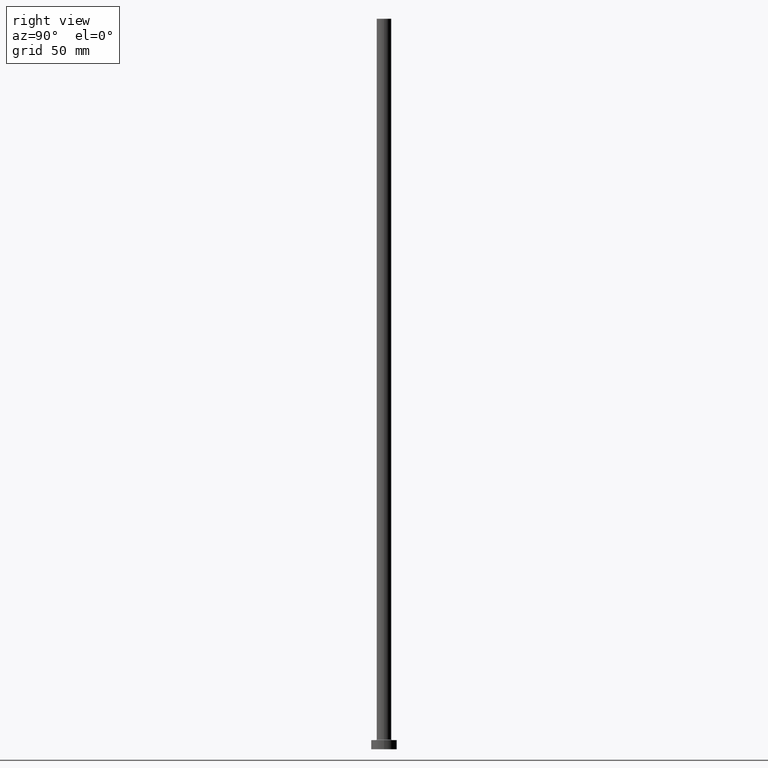
[diagram: clean part render]
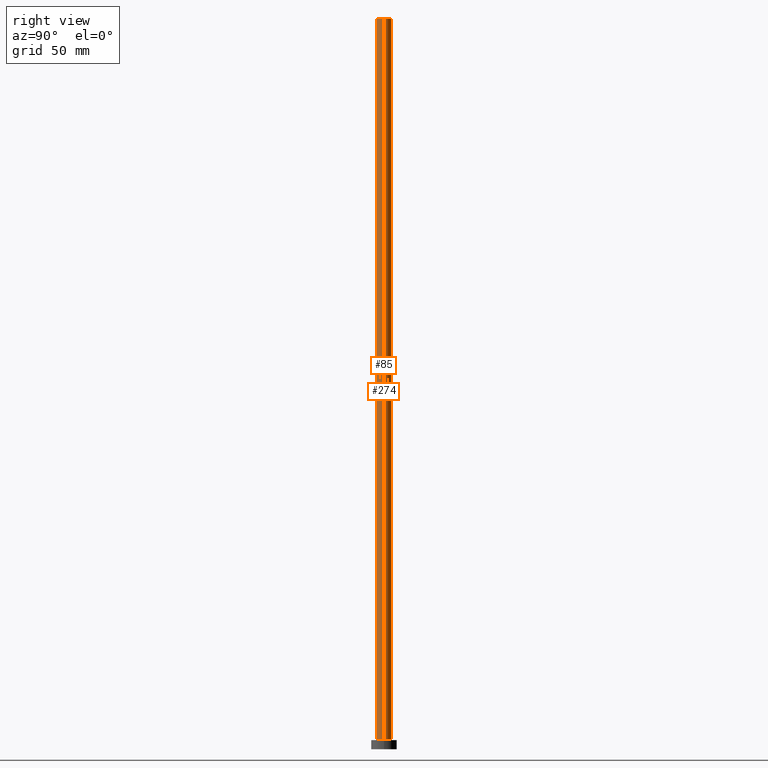
[diagram: same view with one multi-face feature highlighted, each face labeled with its STEP entity id]
A machine part, right view. The highlighted faces form ONE feature: a constant-radius fillet chain: 2 tangent blend faces with common blend radius 4 mm. The faces share edges in the B-rep.
Their STEP definitions:
[1] entity #85 (Cylinder):
#10 = CARTESIAN_POINT ( 'NONE',  ( -4.000000000000000000, 0.000000000000000000, 5.500000000000005329 ) ) ;
#11 = ORIENTED_EDGE ( 'NONE', *, *, #79, .F. ) ;
#28 = VERTEX_POINT ( 'NONE', #60 ) ;
#32 = DIRECTION ( 'NONE',  ( -0.000000000000000000, -0.000000000000000000, -1.000000000000000000 ) ) ;
#35 = DIRECTION ( 'NONE',  ( -0.000000000000000000, -0.000000000000000000, -1.000000000000000000 ) ) ;
#40 = EDGE_CURVE ( 'NONE', #382, #28, #145, .T. ) ;
#49 = EDGE_LOOP ( 'NONE', ( #11, #458, #156, #65 ) ) ;
#58 = DIRECTION ( 'NONE',  ( 1.000000000000000000, 0.000000000000000000, 0.000000000000000000 ) ) ;
#59 = DIRECTION ( 'NONE',  ( 1.000000000000000000, 0.000000000000000000, 0.000000000000000000 ) ) ;
#60 = CARTESIAN_POINT ( 'NONE',  ( 4.000000000000000000, 4.898587196589411843E-16, 400.0000000000000000 ) ) ;
#65 = ORIENTED_EDGE ( 'NONE', *, *, #374, .T. ) ;
#79 = EDGE_CURVE ( 'NONE', #28, #81, #460, .T. ) ;
#81 = VERTEX_POINT ( 'NONE', #286 ) ;
#85 = ADVANCED_FACE ( 'NONE', ( #397 ), #180, .T. ) ;
#86 = CARTESIAN_POINT ( 'NONE',  ( 0.000000000000000000, 0.000000000000000000, 5.500000000000005329 ) ) ;
#114 = CARTESIAN_POINT ( 'NONE',  ( 0.000000000000000000, 0.000000000000000000, 400.0000000000000000 ) ) ;
#137 = CIRCLE ( 'NONE', #210, 4.000000000000000000 ) ;
#145 = CIRCLE ( 'NONE', #290, 4.000000000000000000 ) ;
#156 = ORIENTED_EDGE ( 'NONE', *, *, #187, .T. ) ;
#180 = CYLINDRICAL_SURFACE ( 'NONE', #339, 4.000000000000000000 ) ;
#187 = EDGE_CURVE ( 'NONE', #382, #338, #319, .T. ) ;
#200 = CARTESIAN_POINT ( 'NONE',  ( -4.000000000000000000, 0.000000000000000000, 400.0000000000000000 ) ) ;
#210 = AXIS2_PLACEMENT_3D ( 'NONE', #86, #375, #58 ) ;
#247 = CARTESIAN_POINT ( 'NONE',  ( -4.000000000000000000, 0.000000000000000000, 400.0000000000000000 ) ) ;
#273 = CARTESIAN_POINT ( 'NONE',  ( 0.000000000000000000, 0.000000000000000000, 400.0000000000000000 ) ) ;
#286 = CARTESIAN_POINT ( 'NONE',  ( 4.000000000000000000, 4.898587196589411843E-16, 5.500000000000005329 ) ) ;
#288 = DIRECTION ( 'NONE',  ( -0.000000000000000000, -0.000000000000000000, -1.000000000000000000 ) ) ;
#290 = AXIS2_PLACEMENT_3D ( 'NONE', #273, #419, #59 ) ;
#319 = LINE ( 'NONE', #247, #403 ) ;
#338 = VERTEX_POINT ( 'NONE', #10 ) ;
#339 = AXIS2_PLACEMENT_3D ( 'NONE', #114, #32, #388 ) ;
#363 = VECTOR ( 'NONE', #288, 1000.000000000000000 ) ;
#374 = EDGE_CURVE ( 'NONE', #338, #81, #137, .T. ) ;
#375 = DIRECTION ( 'NONE',  ( 0.000000000000000000, 0.000000000000000000, 1.000000000000000000 ) ) ;
#382 = VERTEX_POINT ( 'NONE', #200 ) ;
#388 = DIRECTION ( 'NONE',  ( -1.000000000000000000, 0.000000000000000000, 0.000000000000000000 ) ) ;
#397 = FACE_OUTER_BOUND ( 'NONE', #49, .T. ) ;
#403 = VECTOR ( 'NONE', #35, 1000.000000000000000 ) ;
#419 = DIRECTION ( 'NONE',  ( 0.000000000000000000, 0.000000000000000000, 1.000000000000000000 ) ) ;
#427 = CARTESIAN_POINT ( 'NONE',  ( 4.000000000000000000, 4.898587196589411843E-16, 400.0000000000000000 ) ) ;
#458 = ORIENTED_EDGE ( 'NONE', *, *, #40, .F. ) ;
#460 = LINE ( 'NONE', #427, #363 ) ;
[2] entity #274 (Cylinder):
#6 = DIRECTION ( 'NONE',  ( -1.000000000000000000, 0.000000000000000000, 0.000000000000000000 ) ) ;
#10 = CARTESIAN_POINT ( 'NONE',  ( -4.000000000000000000, 0.000000000000000000, 5.500000000000005329 ) ) ;
#28 = VERTEX_POINT ( 'NONE', #60 ) ;
#35 = DIRECTION ( 'NONE',  ( -0.000000000000000000, -0.000000000000000000, -1.000000000000000000 ) ) ;
#46 = ORIENTED_EDGE ( 'NONE', *, *, #435, .F. ) ;
#60 = CARTESIAN_POINT ( 'NONE',  ( 4.000000000000000000, 4.898587196589411843E-16, 400.0000000000000000 ) ) ;
#76 = CIRCLE ( 'NONE', #100, 4.000000000000000000 ) ;
#77 = DIRECTION ( 'NONE',  ( -0.000000000000000000, -0.000000000000000000, -1.000000000000000000 ) ) ;
#79 = EDGE_CURVE ( 'NONE', #28, #81, #460, .T. ) ;
#81 = VERTEX_POINT ( 'NONE', #286 ) ;
#91 = AXIS2_PLACEMENT_3D ( 'NONE', #159, #77, #6 ) ;
#100 = AXIS2_PLACEMENT_3D ( 'NONE', #110, #366, #281 ) ;
#110 = CARTESIAN_POINT ( 'NONE',  ( 0.000000000000000000, 0.000000000000000000, 5.500000000000005329 ) ) ;
#140 = EDGE_LOOP ( 'NONE', ( #46, #417, #411, #355 ) ) ;
#154 = EDGE_CURVE ( 'NONE', #81, #338, #76, .T. ) ;
#155 = CYLINDRICAL_SURFACE ( 'NONE', #91, 4.000000000000000000 ) ;
#159 = CARTESIAN_POINT ( 'NONE',  ( 0.000000000000000000, 0.000000000000000000, 400.0000000000000000 ) ) ;
#166 = DIRECTION ( 'NONE',  ( 1.000000000000000000, 0.000000000000000000, 0.000000000000000000 ) ) ;
#187 = EDGE_CURVE ( 'NONE', #382, #338, #319, .T. ) ;
#200 = CARTESIAN_POINT ( 'NONE',  ( -4.000000000000000000, 0.000000000000000000, 400.0000000000000000 ) ) ;
#219 = FACE_OUTER_BOUND ( 'NONE', #140, .T. ) ;
#243 = CIRCLE ( 'NONE', #422, 4.000000000000000000 ) ;
#247 = CARTESIAN_POINT ( 'NONE',  ( -4.000000000000000000, 0.000000000000000000, 400.0000000000000000 ) ) ;
#274 = ADVANCED_FACE ( 'NONE', ( #219 ), #155, .T. ) ;
#281 = DIRECTION ( 'NONE',  ( 1.000000000000000000, 0.000000000000000000, 0.000000000000000000 ) ) ;
#286 = CARTESIAN_POINT ( 'NONE',  ( 4.000000000000000000, 4.898587196589411843E-16, 5.500000000000005329 ) ) ;
#288 = DIRECTION ( 'NONE',  ( -0.000000000000000000, -0.000000000000000000, -1.000000000000000000 ) ) ;
#319 = LINE ( 'NONE', #247, #403 ) ;
#338 = VERTEX_POINT ( 'NONE', #10 ) ;
#343 = CARTESIAN_POINT ( 'NONE',  ( 0.000000000000000000, 0.000000000000000000, 400.0000000000000000 ) ) ;
#355 = ORIENTED_EDGE ( 'NONE', *, *, #187, .F. ) ;
#363 = VECTOR ( 'NONE', #288, 1000.000000000000000 ) ;
#366 = DIRECTION ( 'NONE',  ( 0.000000000000000000, 0.000000000000000000, 1.000000000000000000 ) ) ;
#382 = VERTEX_POINT ( 'NONE', #200 ) ;
#403 = VECTOR ( 'NONE', #35, 1000.000000000000000 ) ;
#411 = ORIENTED_EDGE ( 'NONE', *, *, #154, .T. ) ;
#414 = DIRECTION ( 'NONE',  ( 0.000000000000000000, 0.000000000000000000, 1.000000000000000000 ) ) ;
#417 = ORIENTED_EDGE ( 'NONE', *, *, #79, .T. ) ;
#422 = AXIS2_PLACEMENT_3D ( 'NONE', #343, #414, #166 ) ;
#427 = CARTESIAN_POINT ( 'NONE',  ( 4.000000000000000000, 4.898587196589411843E-16, 400.0000000000000000 ) ) ;
#435 = EDGE_CURVE ( 'NONE', #28, #382, #243, .T. ) ;
#460 = LINE ( 'NONE', #427, #363 ) ;